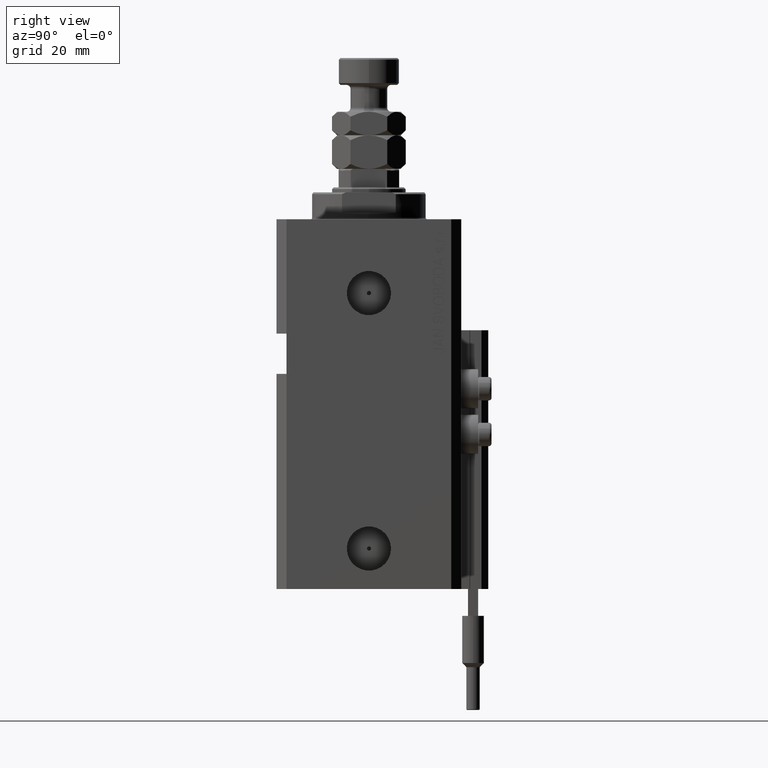
[diagram: clean part render]
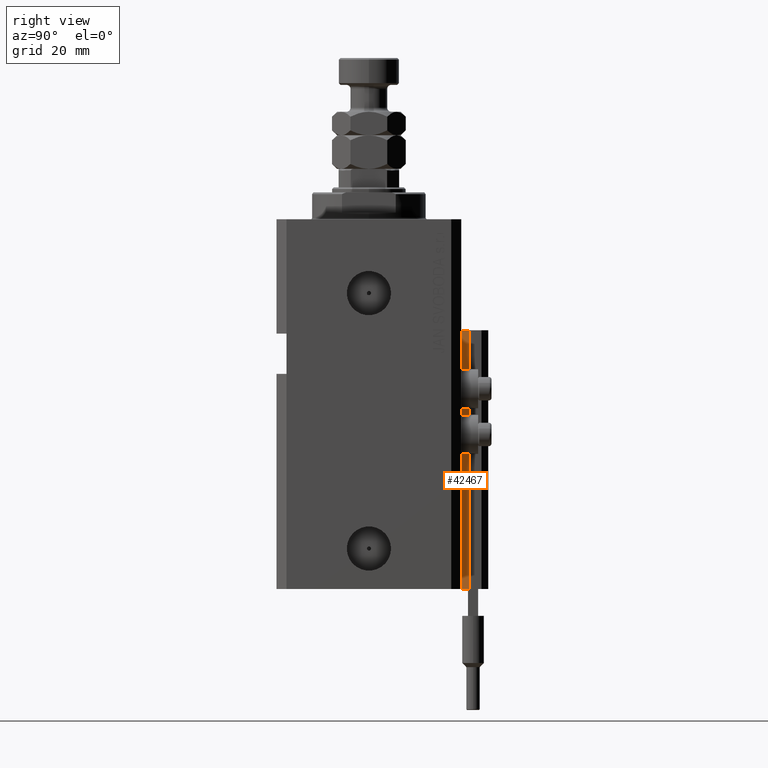
[diagram: same view with one face highlighted and labeled with its STEP entity id]
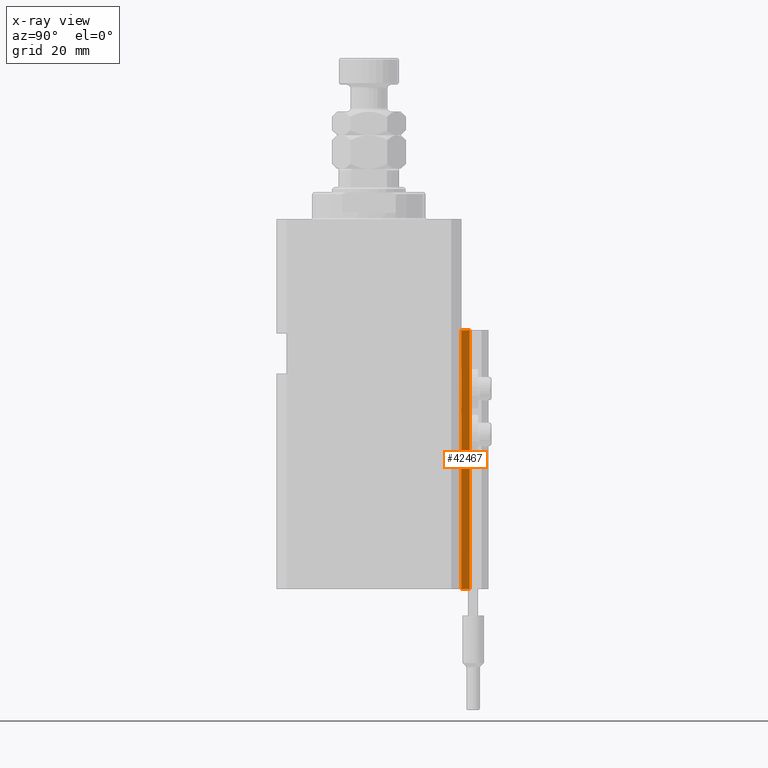
[diagram: x-ray of the same camera — body ghosted, the highlighted face saturated]
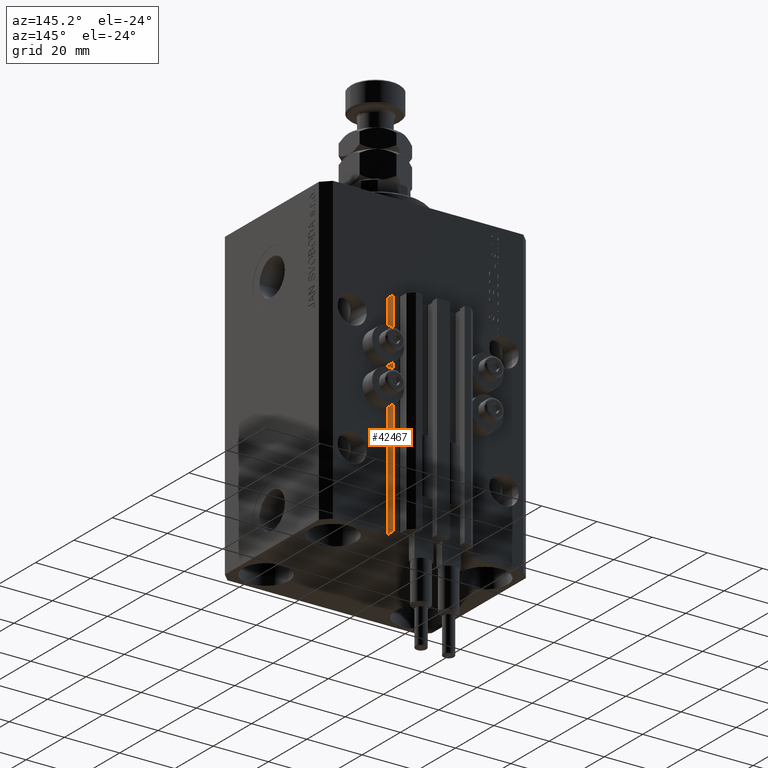
[diagram: same view with one face highlighted and labeled with its STEP entity id]
A machine part, right view. The second image highlights one B-rep face of the part: STEP entity #42467.
The next image is the same camera in x-ray: the body ghosted, the highlighted face saturated — about 0% of this face is hidden behind the body in this view.
A second angle (auxiliary view) of the same face is appended — the face is thin or edge-on in the first view.
In plain terms, the highlighted planar face has unit normal (1, 0, 0).
Its self-contained STEP definition (entity closure, byte-faithful):
#534 = VERTEX_POINT ( 'NONE', #44789 ) ;
#2046 = EDGE_LOOP ( 'NONE', ( #28035, #45201, #50066, #20014 ) ) ;
#4774 = DIRECTION ( 'NONE',  ( 0.000000000000000000, 0.000000000000000000, 1.000000000000000000 ) ) ;
#12336 = CARTESIAN_POINT ( 'NONE',  ( 14.49999999999999645, 27.50000000000000355, -33.00000000000000000 ) ) ;
#12494 = PLANE ( 'NONE',  #49386 ) ;
#12964 = VERTEX_POINT ( 'NONE', #26421 ) ;
#16471 = CARTESIAN_POINT ( 'NONE',  ( 14.49999999999999645, 30.00000000000002487, -110.0000000000000000 ) ) ;
#17730 = VECTOR ( 'NONE', #4774, 1000.000000000000000 ) ;
#20014 = ORIENTED_EDGE ( 'NONE', *, *, #44543, .T. ) ;
#20114 = FACE_OUTER_BOUND ( 'NONE', #2046, .T. ) ;
#20950 = LINE ( 'NONE', #12336, #32597 ) ;
#21115 = CARTESIAN_POINT ( 'NONE',  ( 14.49999999999999645, 27.50000000000000355, -110.0000000000000000 ) ) ;
#22907 = EDGE_CURVE ( 'NONE', #25294, #12964, #20950, .T. ) ;
#23188 = CARTESIAN_POINT ( 'NONE',  ( 14.49999999999999645, 27.50000000000000355, -110.0000000000000000 ) ) ;
#25294 = VERTEX_POINT ( 'NONE', #32911 ) ;
#26421 = CARTESIAN_POINT ( 'NONE',  ( 14.49999999999999645, 30.00000000000002487, -33.00000000000000000 ) ) ;
#27769 = DIRECTION ( 'NONE',  ( 1.000000000000000000, 0.000000000000000000, 0.000000000000000000 ) ) ;
#28035 = ORIENTED_EDGE ( 'NONE', *, *, #22907, .F. ) ;
#29168 = EDGE_CURVE ( 'NONE', #534, #25294, #49840, .T. ) ;
#30522 = CARTESIAN_POINT ( 'NONE',  ( 14.49999999999999645, 30.00000000000002487, -110.0000000000000000 ) ) ;
#30968 = DIRECTION ( 'NONE',  ( 0.000000000000000000, 0.000000000000000000, 1.000000000000000000 ) ) ;
#32597 = VECTOR ( 'NONE', #44625, 1000.000000000000000 ) ;
#32911 = CARTESIAN_POINT ( 'NONE',  ( 14.49999999999999645, 27.50000000000000355, -33.00000000000000000 ) ) ;
#34283 = CARTESIAN_POINT ( 'NONE',  ( 14.49999999999999645, 27.50000000000000355, -110.0000000000000000 ) ) ;
#35297 = LINE ( 'NONE', #16471, #17730 ) ;
#35638 = DIRECTION ( 'NONE',  ( 0.000000000000000000, 0.000000000000000000, -1.000000000000000000 ) ) ;
#36240 = VERTEX_POINT ( 'NONE', #30522 ) ;
#38703 = DIRECTION ( 'NONE',  ( 0.000000000000000000, 1.000000000000000000, 0.000000000000000000 ) ) ;
#40077 = VECTOR ( 'NONE', #30968, 1000.000000000000000 ) ;
#42036 = VECTOR ( 'NONE', #38703, 1000.000000000000000 ) ;
#42423 = EDGE_CURVE ( 'NONE', #534, #36240, #42538, .T. ) ;
#42467 = ADVANCED_FACE ( 'NONE', ( #20114 ), #12494, .T. ) ;
#42538 = LINE ( 'NONE', #23188, #42036 ) ;
#44543 = EDGE_CURVE ( 'NONE', #36240, #12964, #35297, .T. ) ;
#44625 = DIRECTION ( 'NONE',  ( 0.000000000000000000, 1.000000000000000000, 0.000000000000000000 ) ) ;
#44789 = CARTESIAN_POINT ( 'NONE',  ( 14.49999999999999645, 27.50000000000000355, -110.0000000000000000 ) ) ;
#45201 = ORIENTED_EDGE ( 'NONE', *, *, #29168, .F. ) ;
#49386 = AXIS2_PLACEMENT_3D ( 'NONE', #21115, #27769, #35638 ) ;
#49840 = LINE ( 'NONE', #34283, #40077 ) ;
#50066 = ORIENTED_EDGE ( 'NONE', *, *, #42423, .T. ) ;